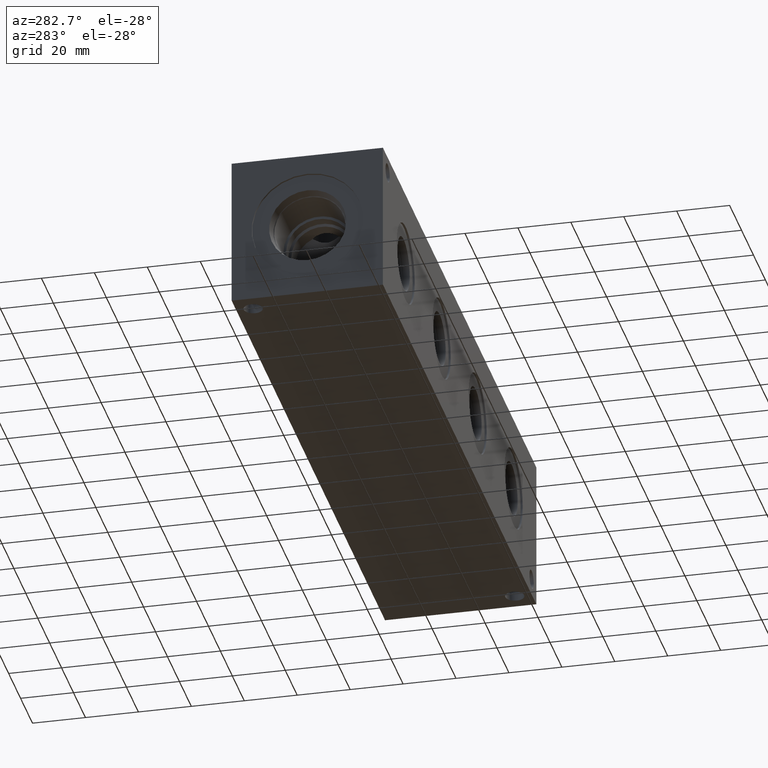
[diagram: clean part render]
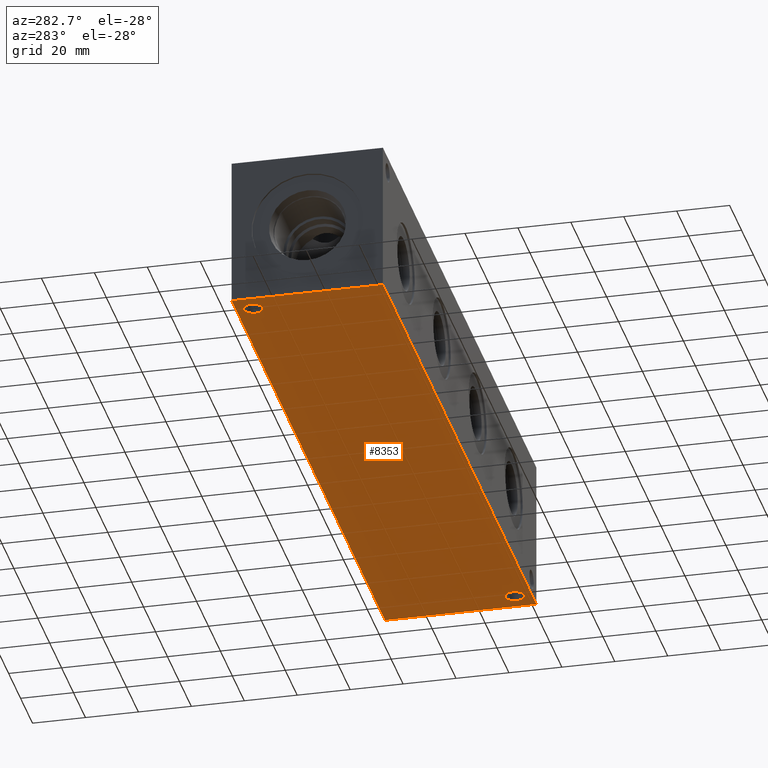
[diagram: same view with one face highlighted and labeled with its STEP entity id]
A machine part, auxiliary view. The second image highlights one B-rep face of the part: STEP entity #8353.
In plain terms, the highlighted planar face has unit normal (0, 0, 1).
Its self-contained STEP definition (entity closure, byte-faithful):
#234=CIRCLE('',#8774,3.5687);
#235=CIRCLE('',#8776,3.5687);
#358=FACE_BOUND('',#1511,.T.);
#359=FACE_BOUND('',#1512,.T.);
#590=PLANE('',#8876);
#1017=FACE_OUTER_BOUND('',#1510,.T.);
#1510=EDGE_LOOP('',(#7506,#7507,#7508,#7509));
#1511=EDGE_LOOP('',(#7510));
#1512=EDGE_LOOP('',(#7511));
#2238=LINE('',#14548,#2971);
#2241=LINE('',#14553,#2974);
#2243=LINE('',#14557,#2976);
#2245=LINE('',#14560,#2978);
#2971=VECTOR('',#10612,10.);
#2974=VECTOR('',#10617,10.);
#2976=VECTOR('',#10621,10.);
#2978=VECTOR('',#10625,10.);
#3945=VERTEX_POINT('',#14354);
#3946=VERTEX_POINT('',#14358);
#4007=VERTEX_POINT('',#14546);
#4008=VERTEX_POINT('',#14547);
#4009=VERTEX_POINT('',#14552);
#4010=VERTEX_POINT('',#14556);
#5081=EDGE_CURVE('',#3945,#3945,#234,.T.);
#5083=EDGE_CURVE('',#3946,#3946,#235,.T.);
#5170=EDGE_CURVE('',#4007,#4008,#2238,.T.);
#5173=EDGE_CURVE('',#4009,#4007,#2241,.T.);
#5175=EDGE_CURVE('',#4010,#4009,#2243,.T.);
#5177=EDGE_CURVE('',#4008,#4010,#2245,.T.);
#7506=ORIENTED_EDGE('',*,*,#5177,.F.);
#7507=ORIENTED_EDGE('',*,*,#5170,.F.);
#7508=ORIENTED_EDGE('',*,*,#5173,.F.);
#7509=ORIENTED_EDGE('',*,*,#5175,.F.);
#7510=ORIENTED_EDGE('',*,*,#5081,.T.);
#7511=ORIENTED_EDGE('',*,*,#5083,.T.);
#8353=ADVANCED_FACE('',(#1017,#358,#359),#590,.F.);
#8774=AXIS2_PLACEMENT_3D('',#14356,#10385,#10386);
#8776=AXIS2_PLACEMENT_3D('',#14360,#10390,#10391);
#8876=AXIS2_PLACEMENT_3D('',#14562,#10628,#10629);
#10385=DIRECTION('center_axis',(0.,0.,1.));
#10386=DIRECTION('ref_axis',(1.,0.,0.));
#10390=DIRECTION('center_axis',(0.,0.,1.));
#10391=DIRECTION('ref_axis',(1.,0.,0.));
#10612=DIRECTION('',(0.,-1.,0.));
#10617=DIRECTION('',(-1.,0.,0.));
#10621=DIRECTION('',(0.,1.,0.));
#10625=DIRECTION('',(1.,0.,0.));
#10628=DIRECTION('center_axis',(0.,0.,1.));
#10629=DIRECTION('ref_axis',(1.,0.,0.));
#14354=CARTESIAN_POINT('',(245.6561,6.35,0.));
#14356=CARTESIAN_POINT('Origin',(249.2248,6.35,0.));
#14358=CARTESIAN_POINT('',(4.3561,50.8,0.));
#14360=CARTESIAN_POINT('Origin',(7.9248,50.8,0.));
#14546=CARTESIAN_POINT('',(0.,57.15,0.));
#14547=CARTESIAN_POINT('',(0.,0.,0.));
#14548=CARTESIAN_POINT('',(0.,57.15,0.));
#14552=CARTESIAN_POINT('',(257.175,57.15,0.));
#14553=CARTESIAN_POINT('',(257.175,57.15,0.));
#14556=CARTESIAN_POINT('',(257.175,0.,0.));
#14557=CARTESIAN_POINT('',(257.175,0.,0.));
#14560=CARTESIAN_POINT('',(0.,0.,0.));
#14562=CARTESIAN_POINT('Origin',(128.5875,28.575,0.));